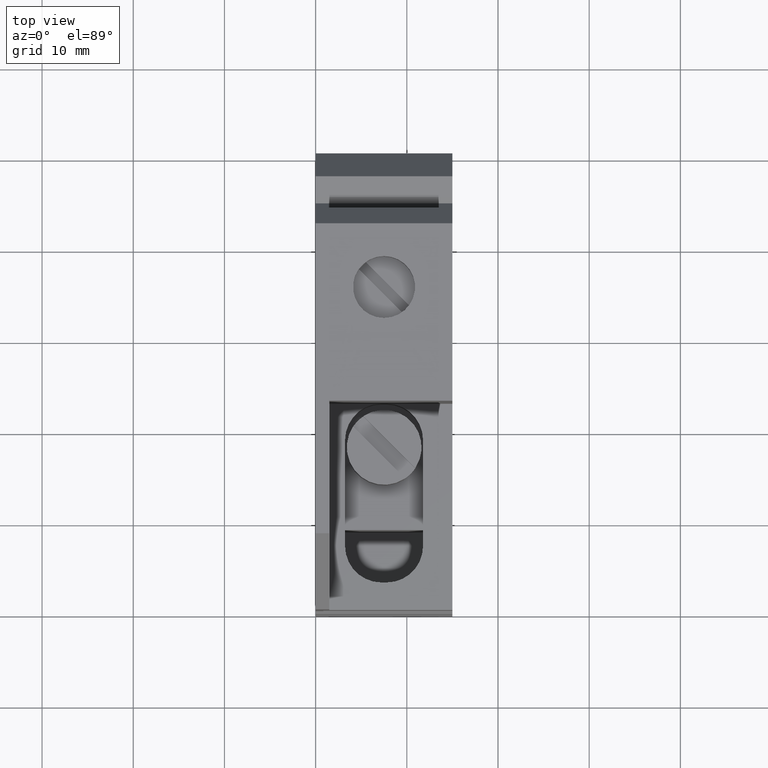
[diagram: clean part render]
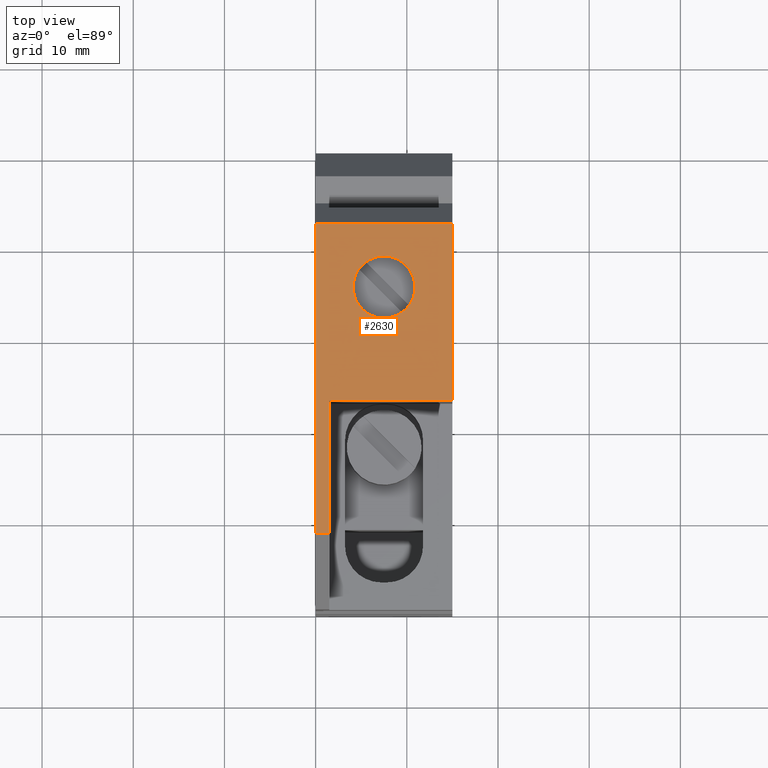
[diagram: same view with one face highlighted and labeled with its STEP entity id]
A machine part, top view. The second image highlights one B-rep face of the part: STEP entity #2630.
In plain terms, the highlighted planar face has unit normal (0, 0, -1).
Its self-contained STEP definition (entity closure, byte-faithful):
#1930=CARTESIAN_POINT('',(0.274999999999999,-1.2,1.72768950874687E-14));
#1940=DIRECTION('',(-1.49975978266186E-32,-1.,-1.22464679914735E-16));
#1950=DIRECTION('',(-1.,0.,1.22464679914735E-16));
#1960=AXIS2_PLACEMENT_3D('',#1930,#1940,#1950);
#1970=PLANE('',#1960);
#1980=CARTESIAN_POINT('',(-10.,-1.2,1.85352196735927E-14));
#1990=DIRECTION('',(1.49975978266186E-32,1.,1.22464679914735E-16));
#2000=DIRECTION('',(1.,0.,-1.22464679914735E-16));
#2010=AXIS2_PLACEMENT_3D('',#1980,#1990,#2000);
#2020=CIRCLE('',#2010,3.4);
#2030=CARTESIAN_POINT('',(-13.4,-1.2,1.85352196735927E-14));
#2040=VERTEX_POINT('',#2030);
#2050=CARTESIAN_POINT('',(-6.6,-1.2,1.81188397618826E-14));
#2060=VERTEX_POINT('',#2050);
#2070=EDGE_CURVE('',#2040,#2060,#2020,.T.);
#2080=ORIENTED_EDGE('',*,*,#2070,.F.);
#2090=EDGE_CURVE('',#2060,#2040,#2020,.T.);
#2100=ORIENTED_EDGE('',*,*,#2090,.F.);
#2110=EDGE_LOOP('',(#2100,#2080));
#2120=FACE_BOUND('',#2110,.T.);
#2130=CARTESIAN_POINT('',(-17.,-1.2,0.));
#2140=DIRECTION('',(0.,0.,1.));
#2150=VECTOR('',#2140,1.);
#2160=LINE('',#2130,#2150);
#2170=CARTESIAN_POINT('',(-17.,-1.2,-7.49999999999998));
#2180=VERTEX_POINT('',#2170);
#2190=CARTESIAN_POINT('',(-17.,-1.2,7.50000000000002));
#2200=VERTEX_POINT('',#2190);
#2210=EDGE_CURVE('',#2180,#2200,#2160,.T.);
#2220=ORIENTED_EDGE('',*,*,#2210,.T.);
#2230=CARTESIAN_POINT('',(0.,-1.2,-7.49999999999998));
#2240=DIRECTION('',(-1.,0.,1.22464679914735E-16));
#2250=VECTOR('',#2240,1.);
#2260=LINE('',#2230,#2250);
#2270=CARTESIAN_POINT('',(2.475,-1.2,-7.49999999999998));
#2280=VERTEX_POINT('',#2270);
#2290=EDGE_CURVE('',#2280,#2180,#2260,.T.);
#2300=ORIENTED_EDGE('',*,*,#2290,.T.);
#2310=CARTESIAN_POINT('',(2.475,-1.2,0.));
#2320=DIRECTION('',(0.,1.22464679914735E-16,-1.));
#2330=VECTOR('',#2320,1.);
#2340=LINE('',#2310,#2330);
#2350=CARTESIAN_POINT('',(2.475,-1.2,6.));
#2360=VERTEX_POINT('',#2350);
#2370=EDGE_CURVE('',#2360,#2280,#2340,.T.);
#2380=ORIENTED_EDGE('',*,*,#2370,.T.);
#2390=CARTESIAN_POINT('',(0.,-1.2,6.));
#2400=DIRECTION('',(-1.,0.,0.));
#2410=VECTOR('',#2400,1.);
#2420=LINE('',#2390,#2410);
#2430=CARTESIAN_POINT('',(17.,-1.2,6.));
#2440=VERTEX_POINT('',#2430);
#2450=EDGE_CURVE('',#2440,#2360,#2420,.T.);
#2460=ORIENTED_EDGE('',*,*,#2450,.T.);
#2470=CARTESIAN_POINT('',(17.,-1.2,0.));
#2480=DIRECTION('',(0.,0.,1.));
#2490=VECTOR('',#2480,1.);
#2500=LINE('',#2470,#2490);
#2510=CARTESIAN_POINT('',(17.,-1.2,7.50000000000002));
#2520=VERTEX_POINT('',#2510);
#2530=EDGE_CURVE('',#2440,#2520,#2500,.T.);
#2540=ORIENTED_EDGE('',*,*,#2530,.F.);
#2550=CARTESIAN_POINT('',(0.,-1.2,7.50000000000002));
#2560=DIRECTION('',(-1.,1.49975978266186E-32,0.));
#2570=VECTOR('',#2560,1.);
#2580=LINE('',#2550,#2570);
#2590=EDGE_CURVE('',#2520,#2200,#2580,.T.);
#2600=ORIENTED_EDGE('',*,*,#2590,.F.);
#2610=EDGE_LOOP('',(#2600,#2540,#2460,#2380,#2300,#2220));
#2620=FACE_OUTER_BOUND('',#2610,.T.);
#2630=ADVANCED_FACE('',(#2120,#2620),#1970,.F.);